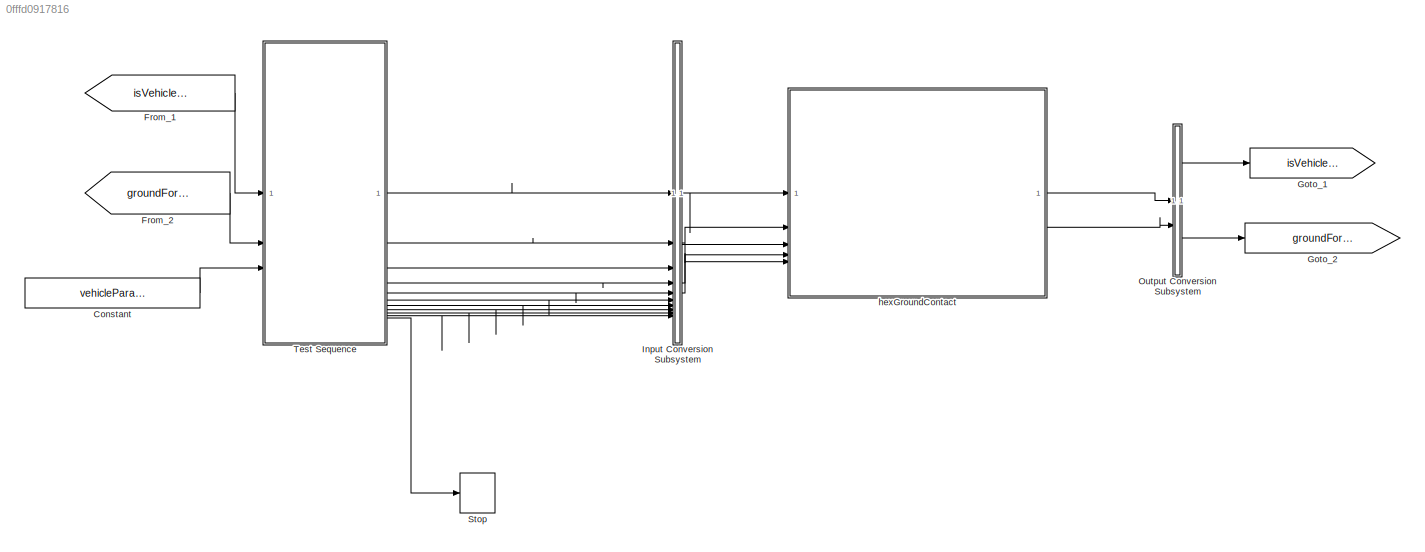
MODEL slx_0fffd0917816
KIND model
BLOCK [Constant] Constant
  Value = vehicleParams.dryMass_kg
BLOCK [From] From_1
  GotoTag = isVehicleAirborne
BLOCK [From] From_2
  GotoTag = groundForcesMomentsBus
BLOCK [Goto] Goto_1
  GotoTag = isVehicleAirborne
BLOCK [Goto] Goto_2
  GotoTag = groundForcesMomentsBus
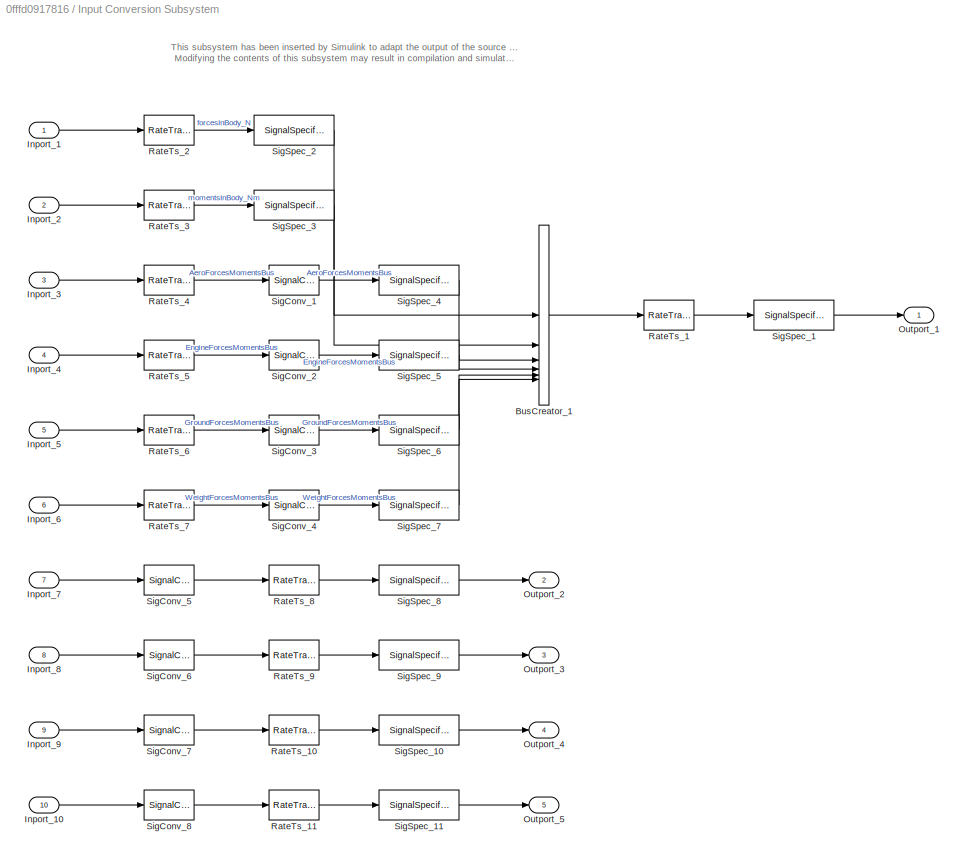
BLOCK [SubSystem] Input Conversion Subsystem
  AttributesFormatString = %<Description>
  Description = Signal spec.\nand routing
  Permissions = ReadOnly
  PermitHierarchicalResolution = ExplicitOnly
  Tag = __SLT_ICS__
  TreatAsGroupedWhenPropagatingVariantConditions = off
  UserDataPersistent = on
BLOCK [BusCreator] Input Conversion Subsystem/BusCreator_1
  InheritFromInputs = on
  Inputs = 6
  OutDataTypeStr = Bus: AircraftForcesMomentsBus
BLOCK [Inport] Input Conversion Subsystem/Inport_1
BLOCK [Inport] Input Conversion Subsystem/Inport_10
  Port = 10
BLOCK [Inport] Input Conversion Subsystem/Inport_2
  Port = 2
BLOCK [Inport] Input Conversion Subsystem/Inport_3
  Port = 3
BLOCK [Inport] Input Conversion Subsystem/Inport_4
  Port = 4
BLOCK [Inport] Input Conversion Subsystem/Inport_5
  Port = 5
BLOCK [Inport] Input Conversion Subsystem/Inport_6
  Port = 6
BLOCK [Inport] Input Conversion Subsystem/Inport_7
  Port = 7
BLOCK [Inport] Input Conversion Subsystem/Inport_8
  Port = 8
BLOCK [Inport] Input Conversion Subsystem/Inport_9
  Port = 9
BLOCK [Outport] Input Conversion Subsystem/Outport_1
BLOCK [Outport] Input Conversion Subsystem/Outport_2
  Port = 2
BLOCK [Outport] Input Conversion Subsystem/Outport_3
  Port = 3
BLOCK [Outport] Input Conversion Subsystem/Outport_4
  Port = 4
BLOCK [Outport] Input Conversion Subsystem/Outport_5
  Port = 5
BLOCK [RateTransition] Input Conversion Subsystem/RateTs_1
  OutPortSampleTime = 0.004
BLOCK [RateTransition] Input Conversion Subsystem/RateTs_10
  OutPortSampleTime = 0.004
BLOCK [RateTransition] Input Conversion Subsystem/RateTs_11
  OutPortSampleTime = 0.004
BLOCK [RateTransition] Input Conversion Subsystem/RateTs_2
  OutPortSampleTime = 0.004
BLOCK [RateTransition] Input Conversion Subsystem/RateTs_3
  OutPortSampleTime = 0.004
BLOCK [RateTransition] Input Conversion Subsystem/RateTs_4
  OutPortSampleTime = 0.004
BLOCK [RateTransition] Input Conversion Subsystem/RateTs_5
  OutPortSampleTime = 0.004
BLOCK [RateTransition] Input Conversion Subsystem/RateTs_6
  OutPortSampleTime = 0.004
BLOCK [RateTransition] Input Conversion Subsystem/RateTs_7
  OutPortSampleTime = 0.004
BLOCK [RateTransition] Input Conversion Subsystem/RateTs_8
  OutPortSampleTime = 0.004
BLOCK [RateTransition] Input Conversion Subsystem/RateTs_9
  OutPortSampleTime = 0.004
BLOCK [SignalConversion] Input Conversion Subsystem/SigConv_1
  ConversionOutput = Nonvirtual bus
  OverrideOpt = off
BLOCK [SignalConversion] Input Conversion Subsystem/SigConv_2
  ConversionOutput = Nonvirtual bus
  OverrideOpt = off
BLOCK [SignalConversion] Input Conversion Subsystem/SigConv_3
  ConversionOutput = Nonvirtual bus
  OverrideOpt = off
BLOCK [SignalConversion] Input Conversion Subsystem/SigConv_4
  ConversionOutput = Nonvirtual bus
  OverrideOpt = off
BLOCK [SignalConversion] Input Conversion Subsystem/SigConv_5
  ConversionOutput = Virtual bus
  OverrideOpt = off
BLOCK [SignalConversion] Input Conversion Subsystem/SigConv_6
  ConversionOutput = Virtual bus
  OverrideOpt = off
BLOCK [SignalConversion] Input Conversion Subsystem/SigConv_7
  ConversionOutput = Virtual bus
  OverrideOpt = off
BLOCK [SignalConversion] Input Conversion Subsystem/SigConv_8
  ConversionOutput = Virtual bus
  OverrideOpt = off
BLOCK [SignalSpecification] Input Conversion Subsystem/SigSpec_1
  OutDataTypeStr = Bus: AircraftForcesMomentsBus
  SampleTime = 0.004
BLOCK [SignalSpecification] Input Conversion Subsystem/SigSpec_10
  OutDataTypeStr = Bus: BodyStateBus
BLOCK [SignalSpecification] Input Conversion Subsystem/SigSpec_11
  OutDataTypeStr = Bus: TerrainEnvironmentBus
BLOCK [SignalSpecification] Input Conversion Subsystem/SigSpec_2
  Dimensions = [3]
  OutDataTypeStr = double
  SignalType = real
  VarSizeSig = No
BLOCK [SignalSpecification] Input Conversion Subsystem/SigSpec_3
  Dimensions = [3]
  OutDataTypeStr = double
  SignalType = real
  VarSizeSig = No
BLOCK [SignalSpecification] Input Conversion Subsystem/SigSpec_4
  BusOutputAsStruct = on
  Dimensions = [1]
  OutDataTypeStr = Bus: ComponentForcesMomentsBus
  SignalType = real
  VarSizeSig = No
BLOCK [SignalSpecification] Input Conversion Subsystem/SigSpec_5
  BusOutputAsStruct = on
  Dimensions = [1]
  OutDataTypeStr = Bus: ComponentForcesMomentsBus
  SignalType = real
  VarSizeSig = No
BLOCK [SignalSpecification] Input Conversion Subsystem/SigSpec_6
  BusOutputAsStruct = on
  Dimensions = [1]
  OutDataTypeStr = Bus: ComponentForcesMomentsBus
  SignalType = real
  VarSizeSig = No
BLOCK [SignalSpecification] Input Conversion Subsystem/SigSpec_7
  BusOutputAsStruct = on
  Dimensions = [1]
  OutDataTypeStr = Bus: ComponentForcesMomentsBus
  SignalType = real
  VarSizeSig = No
BLOCK [SignalSpecification] Input Conversion Subsystem/SigSpec_8
  OutDataTypeStr = Bus: ComponentForcesMomentsBus
BLOCK [SignalSpecification] Input Conversion Subsystem/SigSpec_9
  OutDataTypeStr = Bus: ComponentForcesMomentsBus
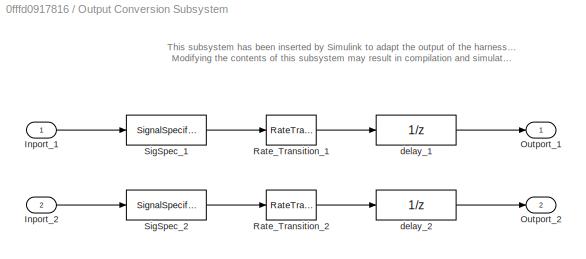
BLOCK [SubSystem] Output Conversion Subsystem
  AttributesFormatString = %<Description>
  Description = Signal spec.\nand routing
  Permissions = ReadOnly
  PermitHierarchicalResolution = ExplicitOnly
  Tag = __SLT_OCS__
  TreatAsGroupedWhenPropagatingVariantConditions = off
  UserDataPersistent = on
BLOCK [Inport] Output Conversion Subsystem/Inport_1
BLOCK [Inport] Output Conversion Subsystem/Inport_2
  Port = 2
BLOCK [Outport] Output Conversion Subsystem/Outport_1
BLOCK [Outport] Output Conversion Subsystem/Outport_2
  Port = 2
BLOCK [RateTransition] Output Conversion Subsystem/Rate_Transition_1
  OutPortSampleTimeOpt = Inherit
BLOCK [RateTransition] Output Conversion Subsystem/Rate_Transition_2
  OutPortSampleTimeOpt = Inherit
BLOCK [SignalSpecification] Output Conversion Subsystem/SigSpec_1
  Dimensions = [1]
  OutDataTypeStr = boolean
  SampleTime = 0.004
  SignalType = real
  VarSizeSig = No
BLOCK [SignalSpecification] Output Conversion Subsystem/SigSpec_2
  Dimensions = [1]
  OutDataTypeStr = Bus: ComponentForcesMomentsBus
  SampleTime = 0.004
  SignalType = real
  VarSizeSig = No
BLOCK [UnitDelay] Output Conversion Subsystem/delay_1
  SampleTime = -1
BLOCK [UnitDelay] Output Conversion Subsystem/delay_2
  InitialCondition = IC2
  SampleTime = -1
BLOCK [Stop] Stop
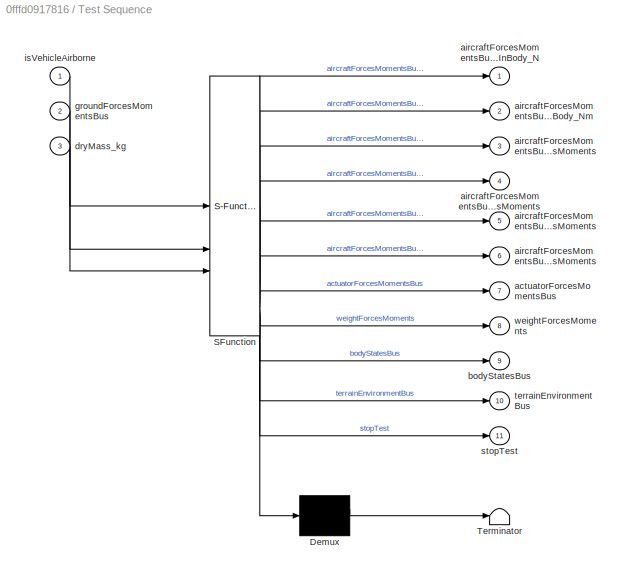
BLOCK [SubSystem] Test Sequence
  ErrorFcn = Stateflow.Translate.translate
  PermitHierarchicalResolution = ExplicitOnly
  SFBlockType = Test Sequence
  ShowPortLabels = none
  TreatAsAtomicUnit = on
BLOCK [Demux] Test Sequence/ Demux 
  Outputs = 1
BLOCK [S-Function] Test Sequence/ SFunction 
  EnableBusSupport = on
  FunctionName = sf_sfun
  Parameters = 1
  PortCounts = [3 12]
  SFcnIsStateOwnerBlock = off
  SFunctionDeploymentMode = off
  Tag = Stateflow S-Function 4
BLOCK [Terminator] Test Sequence/ Terminator 
BLOCK [Outport] Test Sequence/actuatorForcesMomentsBus
  Port = 7
BLOCK [Outport] Test Sequence/aircraftForcesMomentsBus_aeroForcesMoments
  Port = 3
BLOCK [Outport] Test Sequence/aircraftForcesMomentsBus_engineForcesMoments
  Port = 4
BLOCK [Outport] Test Sequence/aircraftForcesMomentsBus_forcesInBody_N
BLOCK [Outport] Test Sequence/aircraftForcesMomentsBus_groundForcesMoments
  Port = 5
BLOCK [Outport] Test Sequence/aircraftForcesMomentsBus_momentsInBody_Nm
  Port = 2
BLOCK [Outport] Test Sequence/aircraftForcesMomentsBus_weightForcesMoments
  Port = 6
BLOCK [Outport] Test Sequence/bodyStatesBus
  Port = 9
BLOCK [Inport] Test Sequence/dryMass_kg
  Port = 3
BLOCK [Inport] Test Sequence/groundForcesMomentsBus
  Port = 2
BLOCK [Inport] Test Sequence/isVehicleAirborne
BLOCK [Outport] Test Sequence/stopTest
  Port = 11
BLOCK [Outport] Test Sequence/terrainEnvironmentBus
  Port = 10
BLOCK [Outport] Test Sequence/weightForcesMoments
  Port = 8
BLOCK [ModelReference] hexGroundContact
  ModelNameDialog = hexGroundContact
  ModelReferenceVersion = 1.64
ANNOTATION Input Conversion Subsystem: This subsystem has been inserted by Simulink to adapt the output of the source blocks to the interface required by the harnessed component. Modifying the contents of this subsystem may result in compilation and simulation failure.
ANNOTATION Output Conversion Subsystem: This subsystem has been inserted by Simulink to adapt the output of the harnessed component to the interface required by the sink blocks. Modifying the contents of this subsystem may result in compilation and simulation failure.
LINE Constant:1 -> Test Sequence:3
LINE From_1:1 -> Test Sequence:1
LINE From_2:1 -> Test Sequence:2
LINE Input Conversion Subsystem/BusCreator_1:1 -> Input Conversion Subsystem/RateTs_1:1
LINE Input Conversion Subsystem/Inport_10:1 -> Input Conversion Subsystem/SigConv_8:1
LINE Input Conversion Subsystem/Inport_1:1 -> Input Conversion Subsystem/RateTs_2:1
LINE Input Conversion Subsystem/Inport_2:1 -> Input Conversion Subsystem/RateTs_3:1
LINE Input Conversion Subsystem/Inport_3:1 -> Input Conversion Subsystem/RateTs_4:1
LINE Input Conversion Subsystem/Inport_4:1 -> Input Conversion Subsystem/RateTs_5:1
LINE Input Conversion Subsystem/Inport_5:1 -> Input Conversion Subsystem/RateTs_6:1
LINE Input Conversion Subsystem/Inport_6:1 -> Input Conversion Subsystem/RateTs_7:1
LINE Input Conversion Subsystem/Inport_7:1 -> Input Conversion Subsystem/SigConv_5:1
LINE Input Conversion Subsystem/Inport_8:1 -> Input Conversion Subsystem/SigConv_6:1
LINE Input Conversion Subsystem/Inport_9:1 -> Input Conversion Subsystem/SigConv_7:1
LINE Input Conversion Subsystem/RateTs_10:1 -> Input Conversion Subsystem/SigSpec_10:1
LINE Input Conversion Subsystem/RateTs_11:1 -> Input Conversion Subsystem/SigSpec_11:1
LINE Input Conversion Subsystem/RateTs_1:1 -> Input Conversion Subsystem/SigSpec_1:1
LINE Input Conversion Subsystem/RateTs_2:1 -> Input Conversion Subsystem/SigSpec_2:1
LINE Input Conversion Subsystem/RateTs_3:1 -> Input Conversion Subsystem/SigSpec_3:1
LINE Input Conversion Subsystem/RateTs_4:1 -> Input Conversion Subsystem/SigConv_1:1
LINE Input Conversion Subsystem/RateTs_5:1 -> Input Conversion Subsystem/SigConv_2:1
LINE Input Conversion Subsystem/RateTs_6:1 -> Input Conversion Subsystem/SigConv_3:1
LINE Input Conversion Subsystem/RateTs_7:1 -> Input Conversion Subsystem/SigConv_4:1
LINE Input Conversion Subsystem/RateTs_8:1 -> Input Conversion Subsystem/SigSpec_8:1
LINE Input Conversion Subsystem/RateTs_9:1 -> Input Conversion Subsystem/SigSpec_9:1
LINE Input Conversion Subsystem/SigConv_1:1 -> Input Conversion Subsystem/SigSpec_4:1
LINE Input Conversion Subsystem/SigConv_2:1 -> Input Conversion Subsystem/SigSpec_5:1
LINE Input Conversion Subsystem/SigConv_3:1 -> Input Conversion Subsystem/SigSpec_6:1
LINE Input Conversion Subsystem/SigConv_4:1 -> Input Conversion Subsystem/SigSpec_7:1
LINE Input Conversion Subsystem/SigConv_5:1 -> Input Conversion Subsystem/RateTs_8:1
LINE Input Conversion Subsystem/SigConv_6:1 -> Input Conversion Subsystem/RateTs_9:1
LINE Input Conversion Subsystem/SigConv_7:1 -> Input Conversion Subsystem/RateTs_10:1
LINE Input Conversion Subsystem/SigConv_8:1 -> Input Conversion Subsystem/RateTs_11:1
LINE Input Conversion Subsystem/SigSpec_10:1 -> Input Conversion Subsystem/Outport_4:1
LINE Input Conversion Subsystem/SigSpec_11:1 -> Input Conversion Subsystem/Outport_5:1
LINE Input Conversion Subsystem/SigSpec_1:1 -> Input Conversion Subsystem/Outport_1:1
LINE Input Conversion Subsystem/SigSpec_2:1 -> Input Conversion Subsystem/BusCreator_1:1
LINE Input Conversion Subsystem/SigSpec_3:1 -> Input Conversion Subsystem/BusCreator_1:2
LINE Input Conversion Subsystem/SigSpec_4:1 -> Input Conversion Subsystem/BusCreator_1:3
LINE Input Conversion Subsystem/SigSpec_5:1 -> Input Conversion Subsystem/BusCreator_1:4
LINE Input Conversion Subsystem/SigSpec_6:1 -> Input Conversion Subsystem/BusCreator_1:5
LINE Input Conversion Subsystem/SigSpec_7:1 -> Input Conversion Subsystem/BusCreator_1:6
LINE Input Conversion Subsystem/SigSpec_8:1 -> Input Conversion Subsystem/Outport_2:1
LINE Input Conversion Subsystem/SigSpec_9:1 -> Input Conversion Subsystem/Outport_3:1
LINE Input Conversion Subsystem:1 -> hexGroundContact:1
LINE Input Conversion Subsystem:2 -> hexGroundContact:2
LINE Input Conversion Subsystem:3 -> hexGroundContact:3
LINE Input Conversion Subsystem:4 -> hexGroundContact:4
LINE Input Conversion Subsystem:5 -> hexGroundContact:5
LINE Output Conversion Subsystem/Inport_1:1 -> Output Conversion Subsystem/SigSpec_1:1
LINE Output Conversion Subsystem/Inport_2:1 -> Output Conversion Subsystem/SigSpec_2:1
LINE Output Conversion Subsystem/Rate_Transition_1:1 -> Output Conversion Subsystem/delay_1:1
LINE Output Conversion Subsystem/Rate_Transition_2:1 -> Output Conversion Subsystem/delay_2:1
LINE Output Conversion Subsystem/SigSpec_1:1 -> Output Conversion Subsystem/Rate_Transition_1:1
LINE Output Conversion Subsystem/SigSpec_2:1 -> Output Conversion Subsystem/Rate_Transition_2:1
LINE Output Conversion Subsystem/delay_1:1 -> Output Conversion Subsystem/Outport_1:1
LINE Output Conversion Subsystem/delay_2:1 -> Output Conversion Subsystem/Outport_2:1
LINE Output Conversion Subsystem:1 -> Goto_1:1
LINE Output Conversion Subsystem:2 -> Goto_2:1
LINE Test Sequence:1 -> Input Conversion Subsystem:1
LINE Test Sequence:10 -> Input Conversion Subsystem:10
LINE Test Sequence:11 -> Stop:1
LINE Test Sequence:2 -> Input Conversion Subsystem:2
LINE Test Sequence:3 -> Input Conversion Subsystem:3
LINE Test Sequence:4 -> Input Conversion Subsystem:4
LINE Test Sequence:5 -> Input Conversion Subsystem:5
LINE Test Sequence:6 -> Input Conversion Subsystem:6
LINE Test Sequence:7 -> Input Conversion Subsystem:7
LINE Test Sequence:8 -> Input Conversion Subsystem:8
LINE Test Sequence:9 -> Input Conversion Subsystem:9
LINE hexGroundContact:1 -> Output Conversion Subsystem:1
LINE hexGroundContact:2 -> Output Conversion Subsystem:2
CHART Test Sequence states=8 transitions=8
  STATE_LABEL 'Scenario_1'
  STATE_LABEL 'Initialize\n\n%% Initialize data outputs.\naircraftForcesMomentsBus_forcesInBody_N = zeros(3, 1);\naircraftForcesMomentsBus_momentsInBody_Nm = zeros(3, 1);\naircraftForcesMomentsBus_aeroForcesMoments.forcesInBody_N = zeros(3,1);\naircraftForcesMomentsBus_aeroForcesMoments.momentsInBody_Nm = zeros(3,1);\naircraftForcesMomentsBus_engineForcesMoments.forcesInBody_N = zeros(3,1);\naircraftForcesMomentsBus_eng...<+1127ch>'
  STATE_LABEL 'verifyNotMoving\nverify(isClose(bodyStatesBus.aircraftPosInNED_m(1),0))\nverify(isClose(bodyStatesBus.aircraftPosInNED_m(2),0))\nverify(isClose(bodyStatesBus.aircraftPosInNED_m(3),0))\nverify(isClose(groundForcesMomentsBus.forcesInBody_N(3), -dryMass_kg * 9.81))\nverify(~isVehicleAirborne)\n%Save the previous ground force, this will be used in the next verificaiton\nprevActuatorGroundForceZ_N = groundFor...<+32ch>'
  STATE_LABEL 'attemptToGoThroughFloor\nbodyStatesBus.aircraftAngVelInBody_radps(3) = 5; % Set aircraft velocity and force to go toward the ground\nactuatorForcesMomentsBus.forcesInBody_N(3) = 10;\n'
  STATE_LABEL 'verifyVehicleNotGoingThroughGround\nverify(prevActuatorGroundForceZ_N >  groundForcesMomentsBus.forcesInBody_N(3)) % Ground should be applying larger -Z force (pointing up toward the sky)'
  STATE_LABEL 'setVehicleAirborne\nbodyStatesBus.aircraftPosInNED_m(3) = -10;'
  STATE_LABEL 'verifyVehicleIsAirborne\nverify(isVehicleAirborne)\nverify(isClose(groundForcesMomentsBus.forcesInBody_N(1),0))\nverify(isClose(groundForcesMomentsBus.forcesInBody_N(2),0))\nverify(isClose(groundForcesMomentsBus.forcesInBody_N(3),0))'
  STATE_LABEL 'EndTest\nstopTest = true;'
  STATE_LABEL '[\ntrue\n]'
  STATE_LABEL '[\nafter(1,sec)\n]'
  STATE_LABEL '[\nafter(1,sec)\n]'
  STATE_LABEL '[\nafter(1,tick)\n]'
  STATE_LABEL '[\nafter(1,sec)\n]'
  STATE_LABEL '[\nafter(1,tick)\n]'
  STATE_LABEL 'Initialize\n\n%% Initialize data outputs.\naircraftForcesMomentsBus_forcesInBody_N = zeros(3, 1);\naircraftForcesMomentsBus_momentsInBody_Nm = zeros(3, 1);\naircraftForcesMomentsBus_aeroForcesMoments.forcesInBody_N = zeros(3,1);\naircraftForcesMomentsBus_aeroForcesMoments.momentsInBody_Nm = zeros(3,1);\naircraftForcesMomentsBus_engineForcesMoments.forcesInBody_N = zeros(3,1);\naircraftForcesMomentsBus_eng...<+1127ch>'
  STATE_LABEL 'verifyNotMoving\nverify(isClose(bodyStatesBus.aircraftPosInNED_m(1),0))\nverify(isClose(bodyStatesBus.aircraftPosInNED_m(2),0))\nverify(isClose(bodyStatesBus.aircraftPosInNED_m(3),0))\nverify(isClose(groundForcesMomentsBus.forcesInBody_N(3), -dryMass_kg * 9.81))\nverify(~isVehicleAirborne)\n%Save the previous ground force, this will be used in the next verificaiton\nprevActuatorGroundForceZ_N = groundFor...<+32ch>'
  STATE_LABEL 'attemptToGoThroughFloor\nbodyStatesBus.aircraftAngVelInBody_radps(3) = 5; % Set aircraft velocity and force to go toward the ground\nactuatorForcesMomentsBus.forcesInBody_N(3) = 10;\n'
  STATE_LABEL 'verifyVehicleNotGoingThroughGround\nverify(prevActuatorGroundForceZ_N >  groundForcesMomentsBus.forcesInBody_N(3)) % Ground should be applying larger -Z force (pointing up toward the sky)'
  STATE_LABEL 'setVehicleAirborne\nbodyStatesBus.aircraftPosInNED_m(3) = -10;'
  STATE_LABEL 'verifyVehicleIsAirborne\nverify(isVehicleAirborne)\nverify(isClose(groundForcesMomentsBus.forcesInBody_N(1),0))\nverify(isClose(groundForcesMomentsBus.forcesInBody_N(2),0))\nverify(isClose(groundForcesMomentsBus.forcesInBody_N(3),0))'
  STATE_LABEL 'EndTest\nstopTest = true;'
